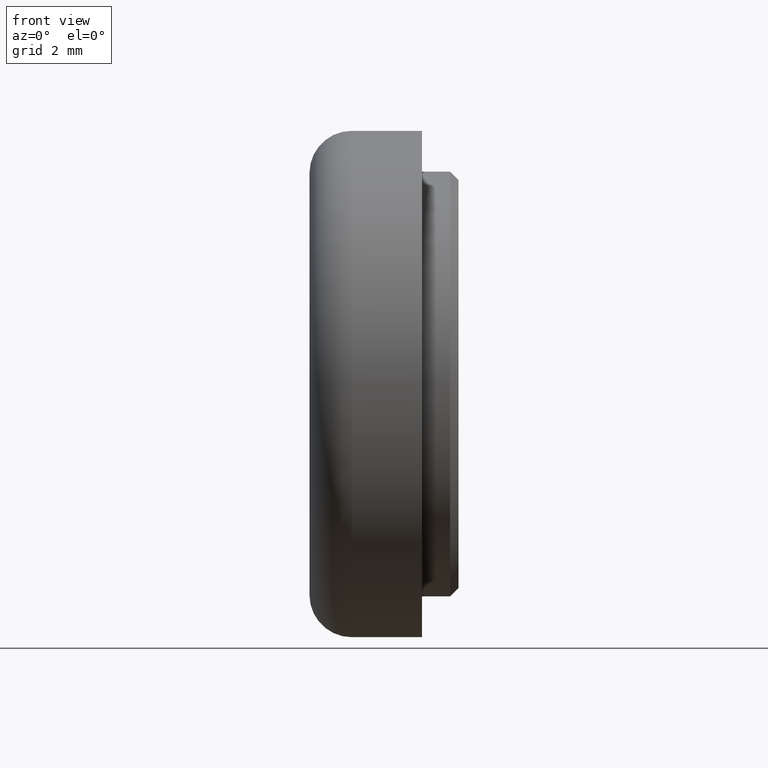
[diagram: clean part render]
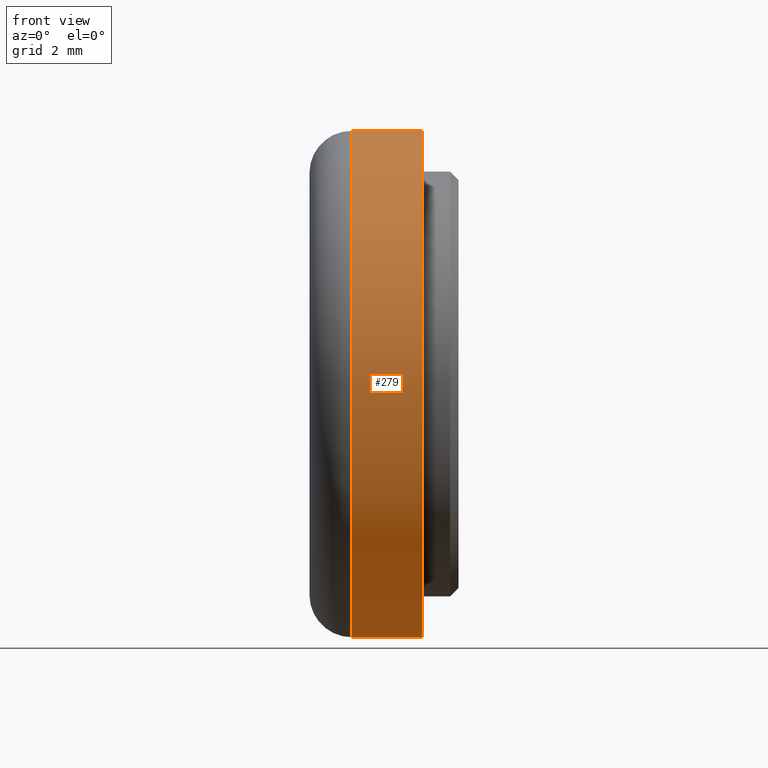
[diagram: same view with one face highlighted and labeled with its STEP entity id]
A machine part, front view. The second image highlights one B-rep face of the part: STEP entity #279.
In plain terms, the highlighted cylindrical surface (partial cylindrical patch) has radius 9 mm, axis along (-1, -0, -0).
Its self-contained STEP definition (entity closure, byte-faithful):
#11 = CARTESIAN_POINT ( 'NONE',  ( 1.500000000000000000, 1.102182119232617700E-015, -9.000000000000000000 ) ) ;
#31 = EDGE_CURVE ( 'NONE', #156, #653, #467, .T. ) ;
#35 = CARTESIAN_POINT ( 'NONE',  ( 1.500000000000000000, 0.0000000000000000000, 9.000000000000000000 ) ) ;
#39 = CARTESIAN_POINT ( 'NONE',  ( 1.500000000000000000, 0.0000000000000000000, 0.0000000000000000000 ) ) ;
#58 = CARTESIAN_POINT ( 'NONE',  ( 4.000000000000000000, 1.102182119232617700E-015, -9.000000000000000000 ) ) ;
#61 = VERTEX_POINT ( 'NONE', #35 ) ;
#82 = EDGE_CURVE ( 'NONE', #61, #187, #725, .T. ) ;
#85 = DIRECTION ( 'NONE',  ( -1.000000000000000000, -0.0000000000000000000, -0.0000000000000000000 ) ) ;
#131 = ORIENTED_EDGE ( 'NONE', *, *, #31, .F. ) ;
#156 = VERTEX_POINT ( 'NONE', #177 ) ;
#167 = DIRECTION ( 'NONE',  ( 0.0000000000000000000, 0.0000000000000000000, -1.000000000000000000 ) ) ;
#177 = CARTESIAN_POINT ( 'NONE',  ( 4.000000000000000000, 0.0000000000000000000, 9.000000000000000000 ) ) ;
#187 = VERTEX_POINT ( 'NONE', #11 ) ;
#218 = LINE ( 'NONE', #58, #482 ) ;
#260 = AXIS2_PLACEMENT_3D ( 'NONE', #378, #426, #616 ) ;
#279 = ADVANCED_FACE ( 'NONE', ( #375 ), #397, .T. ) ;
#280 = EDGE_CURVE ( 'NONE', #653, #187, #218, .T. ) ;
#291 = CARTESIAN_POINT ( 'NONE',  ( 4.000000000000000000, 0.0000000000000000000, 9.000000000000000000 ) ) ;
#375 = FACE_OUTER_BOUND ( 'NONE', #476, .T. ) ;
#378 = CARTESIAN_POINT ( 'NONE',  ( 4.000000000000000000, 0.0000000000000000000, 0.0000000000000000000 ) ) ;
#385 = AXIS2_PLACEMENT_3D ( 'NONE', #39, #614, #167 ) ;
#397 = CYLINDRICAL_SURFACE ( 'NONE', #674, 9.000000000000000000 ) ;
#416 = DIRECTION ( 'NONE',  ( -1.000000000000000000, -0.0000000000000000000, -0.0000000000000000000 ) ) ;
#426 = DIRECTION ( 'NONE',  ( 1.000000000000000000, 0.0000000000000000000, 0.0000000000000000000 ) ) ;
#449 = VECTOR ( 'NONE', #85, 1000.000000000000000 ) ;
#467 = CIRCLE ( 'NONE', #260, 9.000000000000000000 ) ;
#468 = ORIENTED_EDGE ( 'NONE', *, *, #280, .F. ) ;
#476 = EDGE_LOOP ( 'NONE', ( #468, #131, #664, #628 ) ) ;
#482 = VECTOR ( 'NONE', #416, 1000.000000000000000 ) ;
#492 = EDGE_CURVE ( 'NONE', #156, #61, #592, .T. ) ;
#497 = CARTESIAN_POINT ( 'NONE',  ( 4.000000000000000000, 0.0000000000000000000, 0.0000000000000000000 ) ) ;
#557 = DIRECTION ( 'NONE',  ( 0.0000000000000000000, 0.0000000000000000000, 1.000000000000000000 ) ) ;
#574 = CARTESIAN_POINT ( 'NONE',  ( 4.000000000000000000, 1.102182119232617700E-015, -9.000000000000000000 ) ) ;
#592 = LINE ( 'NONE', #291, #449 ) ;
#614 = DIRECTION ( 'NONE',  ( 1.000000000000000000, 0.0000000000000000000, 0.0000000000000000000 ) ) ;
#616 = DIRECTION ( 'NONE',  ( 0.0000000000000000000, 0.0000000000000000000, -1.000000000000000000 ) ) ;
#625 = DIRECTION ( 'NONE',  ( -1.000000000000000000, -0.0000000000000000000, -0.0000000000000000000 ) ) ;
#628 = ORIENTED_EDGE ( 'NONE', *, *, #82, .T. ) ;
#653 = VERTEX_POINT ( 'NONE', #574 ) ;
#664 = ORIENTED_EDGE ( 'NONE', *, *, #492, .T. ) ;
#674 = AXIS2_PLACEMENT_3D ( 'NONE', #497, #625, #557 ) ;
#725 = CIRCLE ( 'NONE', #385, 9.000000000000000000 ) ;